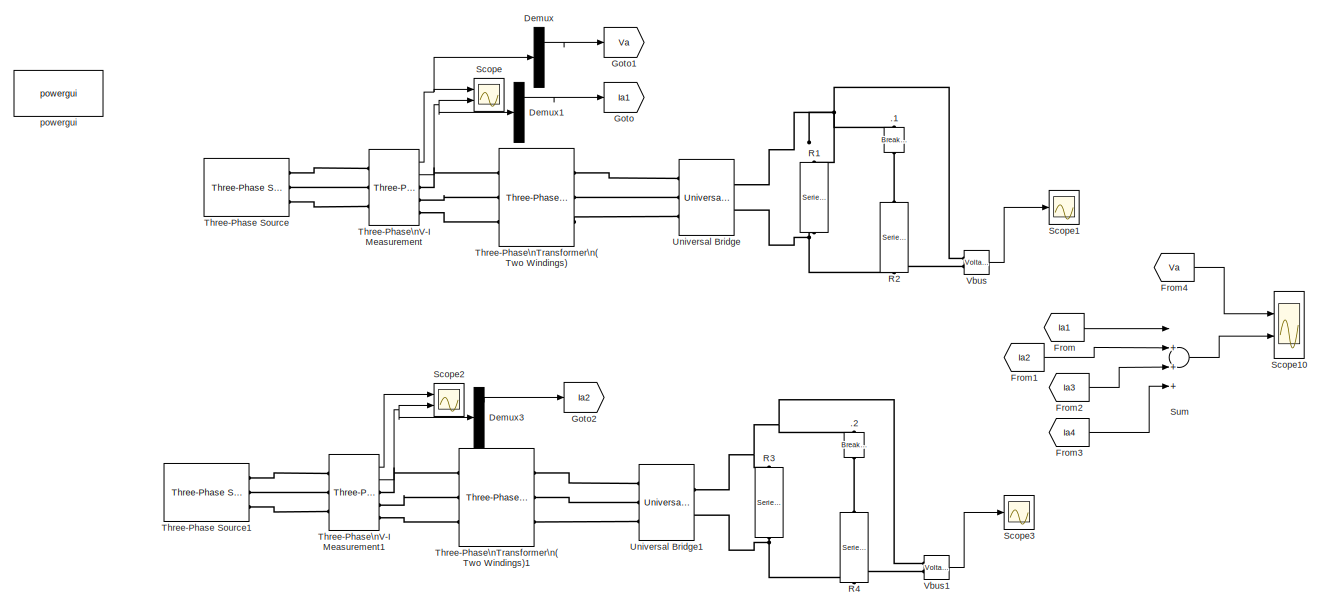
[diagram: root canvas - part 1/2, full width, top band]
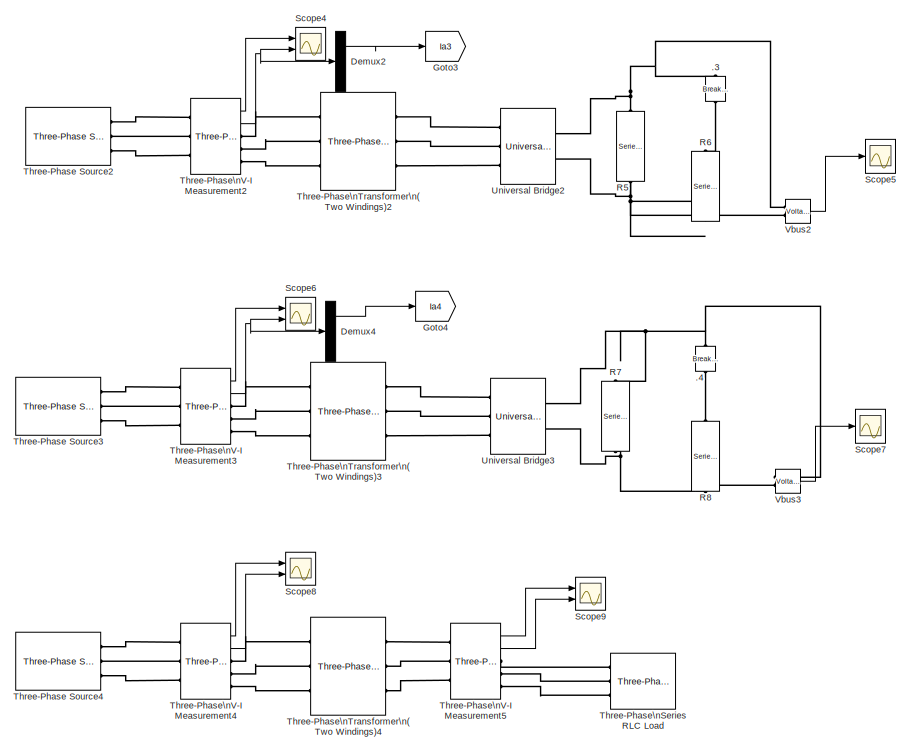
[diagram: root canvas - part 2/2, bottom center region]
MODEL DRU24_PowerFactor
KIND model
BLOCK [Reference] .1  REF=powerlib/Elements/Breaker
  AttributesFormatString = \\n
  BreakerResistance = 0.001
  External = off
  InitialState = 0
  Measurements = None
  MoreParameters = off
  NoBreakLoop = off
  Ports = [0, 0, 0, 0, 0, 1, 1]
  SID = 16
  SnubberCapacitance = inf
  SnubberResistance = 1e6
  SourceBlock = powerlib/Elements/Breaker
  SourceType = Breaker
  SwitchingTimes = [0.5]
BLOCK [Reference] .2  REF=powerlib/Elements/Breaker
  AttributesFormatString = \\n
  BreakerResistance = 0.001
  External = off
  InitialState = 0
  Measurements = None
  MoreParameters = off
  NoBreakLoop = off
  Ports = [0, 0, 0, 0, 0, 1, 1]
  SID = 26
  SnubberCapacitance = inf
  SnubberResistance = 1e6
  SourceBlock = powerlib/Elements/Breaker
  SourceType = Breaker
  SwitchingTimes = [0.5]
BLOCK [Reference] .3  REF=powerlib/Elements/Breaker
  AttributesFormatString = \\n
  BreakerResistance = 0.001
  External = off
  InitialState = 0
  Measurements = None
  MoreParameters = off
  NoBreakLoop = off
  Ports = [0, 0, 0, 0, 0, 1, 1]
  SID = 40
  SnubberCapacitance = inf
  SnubberResistance = 1e6
  SourceBlock = powerlib/Elements/Breaker
  SourceType = Breaker
  SwitchingTimes = [0.5]
BLOCK [Reference] .4  REF=powerlib/Elements/Breaker
  AttributesFormatString = \\n
  BreakerResistance = 0.001
  External = off
  InitialState = 0
  Measurements = None
  MoreParameters = off
  NoBreakLoop = off
  Ports = [0, 0, 0, 0, 0, 1, 1]
  SID = 52
  SnubberCapacitance = inf
  SnubberResistance = 1e6
  SourceBlock = powerlib/Elements/Breaker
  SourceType = Breaker
  SwitchingTimes = [0.5]
BLOCK [Demux] Demux
  DisplayOption = bar
  Outputs = 3
  Ports = [1, 3]
  SID = 23
BLOCK [Demux] Demux1
  DisplayOption = bar
  Outputs = 3
  Ports = [1, 3]
  SID = 24
BLOCK [Demux] Demux2
  DisplayOption = bar
  Outputs = 3
  Ports = [1, 3]
  SID = 41
BLOCK [Demux] Demux3
  DisplayOption = bar
  Outputs = 3
  Ports = [1, 3]
  SID = 28
BLOCK [Demux] Demux4
  DisplayOption = bar
  Outputs = 3
  Ports = [1, 3]
  SID = 53
BLOCK [From] From
  GotoTag = Ia1
  SID = 83
BLOCK [From] From1
  GotoTag = Ia2
  SID = 84
BLOCK [From] From2
  GotoTag = Ia3
  SID = 85
BLOCK [From] From3
  GotoTag = Ia4
  SID = 86
BLOCK [From] From4
  GotoTag = Va
  SID = 88
BLOCK [Goto] Goto
  GotoTag = Ia1
  SID = 20
BLOCK [Goto] Goto1
  GotoTag = Va
  SID = 25
BLOCK [Goto] Goto2
  GotoTag = Ia2
  SID = 29
BLOCK [Goto] Goto3
  GotoTag = Ia3
  SID = 42
BLOCK [Goto] Goto4
  GotoTag = Ia4
  SID = 54
BLOCK [Reference] R1  REF=powerlib/Elements/Series RLC Branch
  BranchType = C
  Capacitance = 2000e-6
  Inductance = 1e-3
  InitialCurrent = 0
  InitialVoltage = 0
  LConnTagsString = __new0
  Measurements = None
  Ports = [0, 0, 0, 0, 0, 1, 1]
  RConnTagsString = __new0
  Resistance = 1e4
  SID = 13
  SetiL0 = off
  Setx0 = off
  SourceBlock = powerlib/Elements/Series RLC Branch
  SourceType = Series RLC Branch
BLOCK [Reference] R2  REF=powerlib/Elements/Series RLC Branch
  BranchType = R
  Capacitance = 1e-6
  Inductance = 1e-3
  InitialCurrent = 0
  InitialVoltage = 0
  LConnTagsString = __new0
  Measurements = None
  Ports = [0, 0, 0, 0, 0, 1, 1]
  RConnTagsString = __new0
  Resistance = 87.55
  SID = 14
  SetiL0 = off
  Setx0 = off
  SourceBlock = powerlib/Elements/Series RLC Branch
  SourceType = Series RLC Branch
BLOCK [Reference] R3  REF=powerlib/Elements/Series RLC Branch
  BranchType = C
  Capacitance = 2000e-6
  Inductance = 1e-3
  InitialCurrent = 0
  InitialVoltage = 0
  LConnTagsString = __new0
  Measurements = None
  Ports = [0, 0, 0, 0, 0, 1, 1]
  RConnTagsString = __new0
  Resistance = 1e4
  SID = 31
  SetiL0 = off
  Setx0 = off
  SourceBlock = powerlib/Elements/Series RLC Branch
  SourceType = Series RLC Branch
BLOCK [Reference] R4  REF=powerlib/Elements/Series RLC Branch
  BranchType = R
  Capacitance = 1e-6
  Inductance = 1e-3
  InitialCurrent = 0
  InitialVoltage = 0
  LConnTagsString = __new0
  Measurements = None
  Ports = [0, 0, 0, 0, 0, 1, 1]
  RConnTagsString = __new0
  Resistance = 87.55
  SID = 32
  SetiL0 = off
  Setx0 = off
  SourceBlock = powerlib/Elements/Series RLC Branch
  SourceType = Series RLC Branch
BLOCK [Reference] R5  REF=powerlib/Elements/Series RLC Branch
  BranchType = C
  Capacitance = 2000e-6
  Inductance = 1e-3
  InitialCurrent = 0
  InitialVoltage = 0
  LConnTagsString = __new0
  Measurements = None
  Ports = [0, 0, 0, 0, 0, 1, 1]
  RConnTagsString = __new0
  Resistance = 1e4
  SID = 43
  SetiL0 = off
  Setx0 = off
  SourceBlock = powerlib/Elements/Series RLC Branch
  SourceType = Series RLC Branch
BLOCK [Reference] R6  REF=powerlib/Elements/Series RLC Branch
  BranchType = R
  Capacitance = 1e-6
  Inductance = 1e-3
  InitialCurrent = 0
  InitialVoltage = 0
  LConnTagsString = __new0
  Measurements = None
  Ports = [0, 0, 0, 0, 0, 1, 1]
  RConnTagsString = __new0
  Resistance = 87.55
  SID = 44
  SetiL0 = off
  Setx0 = off
  SourceBlock = powerlib/Elements/Series RLC Branch
  SourceType = Series RLC Branch
BLOCK [Reference] R7  REF=powerlib/Elements/Series RLC Branch
  BranchType = C
  Capacitance = 2000e-6
  Inductance = 1e-3
  InitialCurrent = 0
  InitialVoltage = 0
  LConnTagsString = __new0
  Measurements = None
  Ports = [0, 0, 0, 0, 0, 1, 1]
  RConnTagsString = __new0
  Resistance = 1e4
  SID = 55
  SetiL0 = off
  Setx0 = off
  SourceBlock = powerlib/Elements/Series RLC Branch
  SourceType = Series RLC Branch
BLOCK [Reference] R8  REF=powerlib/Elements/Series RLC Branch
  BranchType = R
  Capacitance = 1e-6
  Inductance = 1e-3
  InitialCurrent = 0
  InitialVoltage = 0
  LConnTagsString = __new0
  Measurements = None
  Ports = [0, 0, 0, 0, 0, 1, 1]
  RConnTagsString = __new0
  Resistance = 87.55
  SID = 56
  SetiL0 = off
  Setx0 = off
  SourceBlock = powerlib/Elements/Series RLC Branch
  SourceType = Series RLC Branch
BLOCK [Scope] Scope
  DataFormat = StructureWithTime
  Floating = off
  LimitDataPoints = off
  NumInputPorts = 2
  Ports = [2]
  SID = 17
  SampleTime = 0
  ShowLegends = off
  YMax = 5~5
  YMin = -5~-5
  ZoomMode = xonly
BLOCK [Scope] Scope1
  DataFormat = StructureWithTime
  Floating = off
  LimitDataPoints = off
  NumInputPorts = 1
  Ports = [1]
  SID = 18
  SampleTime = 0
  SaveName = ScopeData1
  ShowLegends = off
  ZoomMode = yonly
BLOCK [Scope] Scope10
  DataFormat = StructureWithTime
  Floating = off
  LimitDataPoints = off
  NumInputPorts = 2
  Ports = [2]
  SID = 87
  SampleTime = 0
  SaveName = ScopeData10
  SaveToWorkspace = on
  ShowLegends = off
  YMax = 40000~260
  YMin = -40000~-260
  ZoomMode = xonly
BLOCK [Scope] Scope2
  DataFormat = StructureWithTime
  Floating = off
  LimitDataPoints = off
  NumInputPorts = 2
  Ports = [2]
  SID = 33
  SampleTime = 0
  SaveName = ScopeData2
  ShowLegends = off
  YMax = 5~5
  YMin = -5~-5
  ZoomMode = xonly
BLOCK [Scope] Scope3
  DataFormat = StructureWithTime
  Floating = off
  LimitDataPoints = off
  NumInputPorts = 1
  Ports = [1]
  SID = 34
  SampleTime = 0
  SaveName = ScopeData3
  ShowLegends = off
BLOCK [Scope] Scope4
  DataFormat = StructureWithTime
  Floating = off
  LimitDataPoints = off
  NumInputPorts = 2
  Ports = [2]
  SID = 45
  SampleTime = 0
  SaveName = ScopeData4
  ShowLegends = off
  YMax = 5~5
  YMin = -5~-5
  ZoomMode = xonly
BLOCK [Scope] Scope5
  DataFormat = StructureWithTime
  Floating = off
  LimitDataPoints = off
  NumInputPorts = 1
  Ports = [1]
  SID = 46
  SampleTime = 0
  SaveName = ScopeData5
  ShowLegends = off
BLOCK [Scope] Scope6
  DataFormat = StructureWithTime
  Floating = off
  LimitDataPoints = off
  NumInputPorts = 2
  Ports = [2]
  SID = 57
  SampleTime = 0
  SaveName = ScopeData6
  ShowLegends = off
  YMax = 5~5
  YMin = -5~-5
  ZoomMode = xonly
BLOCK [Scope] Scope7
  DataFormat = StructureWithTime
  Floating = off
  LimitDataPoints = off
  NumInputPorts = 1
  Ports = [1]
  SID = 58
  SampleTime = 0
  SaveName = ScopeData7
  ShowLegends = off
BLOCK [Scope] Scope8
  DataFormat = StructureWithTime
  Floating = off
  LimitDataPoints = off
  NumInputPorts = 2
  Ports = [2]
  SID = 74
  SampleTime = 0
  SaveName = ScopeData8
  ShowLegends = off
  YMax = 5~5
  YMin = -5~-5
  ZoomMode = xonly
BLOCK [Scope] Scope9
  DataFormat = StructureWithTime
  Floating = off
  LimitDataPoints = off
  NumInputPorts = 2
  Ports = [2]
  SID = 81
  SampleTime = 0
  SaveName = ScopeData9
  ShowLegends = off
  YMax = 5~5
  YMin = -5~-5
  ZoomMode = xonly
BLOCK [Sum] Sum
  InputSameDT = off
  Inputs = |++++
  OutDataTypeStr = Inherit: Inherit via internal rule
  Ports = [4, 1]
  SID = 82
  SaturateOnIntegerOverflow = off
BLOCK [Reference] Three-Phase Source  REF=powerlib/Electrical\nSources/Three-Phase Source
  BaseVoltage = 25e3
  BusType = swing
  Frequency = 50
  Inductance = 1e-6
  InternalConnection = Yg
  PhaseAngle = 0
  Ports = [0, 0, 0, 0, 0, 0, 3]
  Pref = 0
  Qmax = inf
  Qmin = -inf
  Qref = 0
  Resistance = 1e-5
  SID = 2
  ShortCircuitLevel = 1e8
  SourceBlock = powerlib/Electrical\nSources/Three-Phase Source
  SourceType = Three-Phase Source
  SpecifyImpedance = off
  Voltage = 25e3
  XRratio = 0.1
BLOCK [Reference] Three-Phase Source1  REF=powerlib/Electrical\nSources/Three-Phase Source
  BaseVoltage = 25e3
  BusType = swing
  Frequency = 50
  Inductance = 1e-6
  InternalConnection = Yg
  PhaseAngle = 15
  Ports = [0, 0, 0, 0, 0, 0, 3]
  Pref = 0
  Qmax = inf
  Qmin = -inf
  Qref = 0
  Resistance = 1e-5
  SID = 37
  ShortCircuitLevel = 1e8
  SourceBlock = powerlib/Electrical\nSources/Three-Phase Source
  SourceType = Three-Phase Source
  SpecifyImpedance = off
  Voltage = 25e3
  XRratio = 0.1
BLOCK [Reference] Three-Phase Source2  REF=powerlib/Electrical\nSources/Three-Phase Source
  BaseVoltage = 25e3
  BusType = swing
  Frequency = 50
  Inductance = 1e-6
  InternalConnection = Yg
  PhaseAngle = 30
  Ports = [0, 0, 0, 0, 0, 0, 3]
  Pref = 0
  Qmax = inf
  Qmin = -inf
  Qref = 0
  Resistance = 1e-5
  SID = 49
  ShortCircuitLevel = 1e8
  SourceBlock = powerlib/Electrical\nSources/Three-Phase Source
  SourceType = Three-Phase Source
  SpecifyImpedance = off
  Voltage = 25e3
  XRratio = 0.1
BLOCK [Reference] Three-Phase Source3  REF=powerlib/Electrical\nSources/Three-Phase Source
  BaseVoltage = 25e3
  BusType = swing
  Frequency = 50
  Inductance = 1e-6
  InternalConnection = Yg
  PhaseAngle = 45
  Ports = [0, 0, 0, 0, 0, 0, 3]
  Pref = 0
  Qmax = inf
  Qmin = -inf
  Qref = 0
  Resistance = 1e-5
  SID = 61
  ShortCircuitLevel = 1e8
  SourceBlock = powerlib/Electrical\nSources/Three-Phase Source
  SourceType = Three-Phase Source
  SpecifyImpedance = off
  Voltage = 25e3
  XRratio = 0.1
BLOCK [Reference] Three-Phase Source4  REF=powerlib/Electrical\nSources/Three-Phase Source
  BaseVoltage = 25e3
  BusType = swing
  Frequency = 50
  Inductance = 1e-6
  InternalConnection = Yg
  PhaseAngle = 0
  Ports = [0, 0, 0, 0, 0, 0, 3]
  Pref = 0
  Qmax = inf
  Qmin = -inf
  Qref = 0
  Resistance = 1e-5
  SID = 77
  ShortCircuitLevel = 1e8
  SourceBlock = powerlib/Electrical\nSources/Three-Phase Source
  SourceType = Three-Phase Source
  SpecifyImpedance = off
  Voltage = 25e3
  XRratio = 0.1
BLOCK [Reference] Three-Phase\nSeries RLC Load  REF=powerlib/Elements/Three-Phase\nSeries RLC Load
  ActivePower = 1e6
  AttributesFormatString = \\n
  CapacitivePower = 0
  Configuration = Y (grounded)
  InductivePower = 0
  LConnTagsString = A|B|C
  LoadType = constant Z
  Measurements = None
  NominalFrequency = 50
  NominalVoltage = 1800
  Ports = [0, 0, 0, 0, 0, 3]
  SID = 79
  SourceBlock = powerlib/Elements/Three-Phase\nSeries RLC Load
  SourceType = Three-Phase Series RLC Load
BLOCK [Reference] Three-Phase\nTransformer\n(Two Windings)  REF=powerlib/Elements/Three-Phase\nTransformer\n(Two Windings)
  BreakLoop = off
  DataFile = 'hysteresis'
  DataType = off
  Hysteresis = off
  InitialFluxes = [ 0.8 , -0.8 , 0.7 ]
  Lm = 500
  Measurements = None
  MoreParameters = off
  NominalPower = [ 1.25e6 , 50 ]
  Ports = [0, 0, 0, 0, 0, 3, 3]
  Rm = 500
  SID = 10
  Saturation = [ 0,0 ; 0.0024,1.2 ; 1.0,1.52 ]
  SetInitialFlux = off
  SetSaturation = off
  SourceBlock = powerlib/Elements/Three-Phase\nTransformer\n(Two Windings)
  SourceType = Three-Phase Transformer (Two Windings)
  TransfoNumber = 1
  UNITS = pu
  Winding1 = [ 25e3 , 0.002 , 0.01 ]
  Winding1Connection = Delta (D1)
  Winding2 = [ 1.8e3 , 0.002 , 0.064 ]
  Winding2Connection = Delta (D1)
BLOCK [Reference] Three-Phase\nTransformer\n(Two Windings)1  REF=powerlib/Elements/Three-Phase\nTransformer\n(Two Windings)
  BreakLoop = off
  DataFile = 'hysteresis'
  DataType = off
  Hysteresis = off
  InitialFluxes = [ 0.8 , -0.8 , 0.7 ]
  Lm = 500
  Measurements = None
  MoreParameters = off
  NominalPower = [ 1.25e6 , 50 ]
  Ports = [0, 0, 0, 0, 0, 3, 3]
  Rm = 500
  SID = 35
  Saturation = [ 0,0 ; 0.0024,1.2 ; 1.0,1.52 ]
  SetInitialFlux = off
  SetSaturation = off
  SourceBlock = powerlib/Elements/Three-Phase\nTransformer\n(Two Windings)
  SourceType = Three-Phase Transformer (Two Windings)
  TransfoNumber = 1
  UNITS = pu
  Winding1 = [ 25e3 , 0.002 , 0.01 ]
  Winding1Connection = Delta (D1)
  Winding2 = [ 1.8e3 , 0.002 , 0.064 ]
  Winding2Connection = Delta (D1)
BLOCK [Reference] Three-Phase\nTransformer\n(Two Windings)2  REF=powerlib/Elements/Three-Phase\nTransformer\n(Two Windings)
  BreakLoop = off
  DataFile = 'hysteresis'
  DataType = off
  Hysteresis = off
  InitialFluxes = [ 0.8 , -0.8 , 0.7 ]
  Lm = 500
  Measurements = None
  MoreParameters = off
  NominalPower = [ 1.25e6 , 50 ]
  Ports = [0, 0, 0, 0, 0, 3, 3]
  Rm = 500
  SID = 47
  Saturation = [ 0,0 ; 0.0024,1.2 ; 1.0,1.52 ]
  SetInitialFlux = off
  SetSaturation = off
  SourceBlock = powerlib/Elements/Three-Phase\nTransformer\n(Two Windings)
  SourceType = Three-Phase Transformer (Two Windings)
  TransfoNumber = 1
  UNITS = pu
  Winding1 = [ 25e3 , 0.002 , 0.01 ]
  Winding1Connection = Delta (D1)
  Winding2 = [ 1.8e3 , 0.002 , 0.064 ]
  Winding2Connection = Delta (D1)
BLOCK [Reference] Three-Phase\nTransformer\n(Two Windings)3  REF=powerlib/Elements/Three-Phase\nTransformer\n(Two Windings)
  BreakLoop = off
  DataFile = 'hysteresis'
  DataType = off
  Hysteresis = off
  InitialFluxes = [ 0.8 , -0.8 , 0.7 ]
  Lm = 500
  Measurements = None
  MoreParameters = off
  NominalPower = [ 1.25e6 , 50 ]
  Ports = [0, 0, 0, 0, 0, 3, 3]
  Rm = 500
  SID = 59
  Saturation = [ 0,0 ; 0.0024,1.2 ; 1.0,1.52 ]
  SetInitialFlux = off
  SetSaturation = off
  SourceBlock = powerlib/Elements/Three-Phase\nTransformer\n(Two Windings)
  SourceType = Three-Phase Transformer (Two Windings)
  TransfoNumber = 1
  UNITS = pu
  Winding1 = [ 25e3 , 0.002 , 0.01 ]
  Winding1Connection = Delta (D1)
  Winding2 = [ 1.8e3 , 0.002 , 0.15 ]
  Winding2Connection = Delta (D1)
BLOCK [Reference] Three-Phase\nTransformer\n(Two Windings)4  REF=powerlib/Elements/Three-Phase\nTransformer\n(Two Windings)
  BreakLoop = off
  DataFile = 'hysteresis'
  DataType = off
  Hysteresis = off
  InitialFluxes = [ 0.8 , -0.8 , 0.7 ]
  Lm = 500
  Measurements = None
  MoreParameters = off
  NominalPower = [ 1.25e6 , 50 ]
  Ports = [0, 0, 0, 0, 0, 3, 3]
  Rm = 500
  SID = 75
  Saturation = [ 0,0 ; 0.0024,1.2 ; 1.0,1.52 ]
  SetInitialFlux = off
  SetSaturation = off
  SourceBlock = powerlib/Elements/Three-Phase\nTransformer\n(Two Windings)
  SourceType = Three-Phase Transformer (Two Windings)
  TransfoNumber = 1
  UNITS = pu
  Winding1 = [ 25e3 , 0.002 , 0.01 ]
  Winding1Connection = Delta (D1)
  Winding2 = [ 1.8e3 , 0.002 , 0.064 ]
  Winding2Connection = Y
BLOCK [Reference] Three-Phase\nV-I Measurement  REF=powerlib/Measurements/Three-Phase\nV-I Measurement
  CurrentMeasurement = yes
  Ipu = off
  LabelI = Iabc
  LabelV = Vabc
  OutputType = Complex
  PSBequivalent = 0
  Pbase = 100e6
  PhasorSimulation = off
  Ports = [0, 2, 0, 0, 0, 3, 3]
  SID = 4
  SetLabelI = off
  SetLabelV = off
  SourceBlock = powerlib/Measurements/Three-Phase\nV-I Measurement
  SourceType = Three-Phase VI Measurement
  Vbase = 500e3
  VoltageMeasurement = phase-to-phase
  Vpu = off
  VpuLL = off
BLOCK [Reference] Three-Phase\nV-I Measurement1  REF=powerlib/Measurements/Three-Phase\nV-I Measurement
  CurrentMeasurement = yes
  Ipu = off
  LabelI = Iabc
  LabelV = Vabc
  OutputType = Complex
  PSBequivalent = 0
  Pbase = 100e6
  PhasorSimulation = off
  Ports = [0, 2, 0, 0, 0, 3, 3]
  SID = 36
  SetLabelI = off
  SetLabelV = off
  SourceBlock = powerlib/Measurements/Three-Phase\nV-I Measurement
  SourceType = Three-Phase VI Measurement
  Vbase = 500e3
  VoltageMeasurement = phase-to-phase
  Vpu = off
  VpuLL = off
BLOCK [Reference] Three-Phase\nV-I Measurement2  REF=powerlib/Measurements/Three-Phase\nV-I Measurement
  CurrentMeasurement = yes
  Ipu = off
  LabelI = Iabc
  LabelV = Vabc
  OutputType = Complex
  PSBequivalent = 0
  Pbase = 100e6
  PhasorSimulation = off
  Ports = [0, 2, 0, 0, 0, 3, 3]
  SID = 48
  SetLabelI = off
  SetLabelV = off
  SourceBlock = powerlib/Measurements/Three-Phase\nV-I Measurement
  SourceType = Three-Phase VI Measurement
  Vbase = 500e3
  VoltageMeasurement = phase-to-phase
  Vpu = off
  VpuLL = off
BLOCK [Reference] Three-Phase\nV-I Measurement3  REF=powerlib/Measurements/Three-Phase\nV-I Measurement
  CurrentMeasurement = yes
  Ipu = off
  LabelI = Iabc
  LabelV = Vabc
  OutputType = Complex
  PSBequivalent = 0
  Pbase = 100e6
  PhasorSimulation = off
  Ports = [0, 2, 0, 0, 0, 3, 3]
  SID = 60
  SetLabelI = off
  SetLabelV = off
  SourceBlock = powerlib/Measurements/Three-Phase\nV-I Measurement
  SourceType = Three-Phase VI Measurement
  Vbase = 500e3
  VoltageMeasurement = phase-to-phase
  Vpu = off
  VpuLL = off
BLOCK [Reference] Three-Phase\nV-I Measurement4  REF=powerlib/Measurements/Three-Phase\nV-I Measurement
  CurrentMeasurement = yes
  Ipu = off
  LabelI = Iabc
  LabelV = Vabc
  OutputType = Complex
  PSBequivalent = 0
  Pbase = 100e6
  PhasorSimulation = off
  Ports = [0, 2, 0, 0, 0, 3, 3]
  SID = 76
  SetLabelI = off
  SetLabelV = off
  SourceBlock = powerlib/Measurements/Three-Phase\nV-I Measurement
  SourceType = Three-Phase VI Measurement
  Vbase = 500e3
  VoltageMeasurement = phase-to-ground
  Vpu = off
  VpuLL = off
BLOCK [Reference] Three-Phase\nV-I Measurement5  REF=powerlib/Measurements/Three-Phase\nV-I Measurement
  CurrentMeasurement = yes
  Ipu = off
  LabelI = Iabc
  LabelV = Vabc
  OutputType = Complex
  PSBequivalent = 0
  Pbase = 100e6
  PhasorSimulation = off
  Ports = [0, 2, 0, 0, 0, 3, 3]
  SID = 80
  SetLabelI = off
  SetLabelV = off
  SourceBlock = powerlib/Measurements/Three-Phase\nV-I Measurement
  SourceType = Three-Phase VI Measurement
  Vbase = 500e3
  VoltageMeasurement = phase-to-ground
  Vpu = off
  VpuLL = off
BLOCK [Reference] Universal Bridge  REF=powerlib/Power\nElectronics/Universal Bridge
  Arms = 3
  Device = Diodes
  ForwardVoltage = 0.2
  ForwardVoltages = [  0  0  ]
  GTOparameters = [ 10e-6 , 20e-6 ]
  IGBTparameters = [ 1e-6 , 2e-6 ]
  Lon = 0
  Measurements = None
  Measurements_2 = None
  Ports = [0, 0, 0, 0, 0, 3, 2]
  Ron = 1e-3
  SID = 12
  SnubberCapacitance = inf
  SnubberResistance = 1e5
  SourceBlock = powerlib/Power\nElectronics/Universal Bridge
  SourceType = Universal Bridge
  converterType = Rectifier
BLOCK [Reference] Universal Bridge1  REF=powerlib/Power\nElectronics/Universal Bridge
  Arms = 3
  Device = Diodes
  ForwardVoltage = 0.2
  ForwardVoltages = [  0  0  ]
  GTOparameters = [ 10e-6 , 20e-6 ]
  IGBTparameters = [ 1e-6 , 2e-6 ]
  Lon = 0
  Measurements = None
  Measurements_2 = None
  Ports = [0, 0, 0, 0, 0, 3, 2]
  Ron = 1e-3
  SID = 38
  SnubberCapacitance = inf
  SnubberResistance = 1e5
  SourceBlock = powerlib/Power\nElectronics/Universal Bridge
  SourceType = Universal Bridge
  converterType = Rectifier
BLOCK [Reference] Universal Bridge2  REF=powerlib/Power\nElectronics/Universal Bridge
  Arms = 3
  Device = Diodes
  ForwardVoltage = 0.2
  ForwardVoltages = [  0  0  ]
  GTOparameters = [ 10e-6 , 20e-6 ]
  IGBTparameters = [ 1e-6 , 2e-6 ]
  Lon = 0
  Measurements = None
  Measurements_2 = None
  Ports = [0, 0, 0, 0, 0, 3, 2]
  Ron = 1e-3
  SID = 50
  SnubberCapacitance = inf
  SnubberResistance = 1e5
  SourceBlock = powerlib/Power\nElectronics/Universal Bridge
  SourceType = Universal Bridge
  converterType = Rectifier
BLOCK [Reference] Universal Bridge3  REF=powerlib/Power\nElectronics/Universal Bridge
  Arms = 3
  Device = Diodes
  ForwardVoltage = 0.2
  ForwardVoltages = [  0  0  ]
  GTOparameters = [ 10e-6 , 20e-6 ]
  IGBTparameters = [ 1e-6 , 2e-6 ]
  Lon = 0
  Measurements = None
  Measurements_2 = None
  Ports = [0, 0, 0, 0, 0, 3, 2]
  Ron = 1e-3
  SID = 62
  SnubberCapacitance = inf
  SnubberResistance = 1e5
  SourceBlock = powerlib/Power\nElectronics/Universal Bridge
  SourceType = Universal Bridge
  converterType = Rectifier
BLOCK [Reference] Vbus  REF=powerlib/Measurements/Voltage Measurement
  OutputType = Complex
  PSBequivalent = 0
  PhasorSimulation = off
  Ports = [0, 1, 0, 0, 0, 2]
  SID = 19
  SourceBlock = powerlib/Measurements/Voltage Measurement
  SourceType = Voltage Measurement
BLOCK [Reference] Vbus1  REF=powerlib/Measurements/Voltage Measurement
  OutputType = Complex
  PSBequivalent = 0
  PhasorSimulation = off
  Ports = [0, 1, 0, 0, 0, 2]
  SID = 39
  SourceBlock = powerlib/Measurements/Voltage Measurement
  SourceType = Voltage Measurement
BLOCK [Reference] Vbus2  REF=powerlib/Measurements/Voltage Measurement
  OutputType = Complex
  PSBequivalent = 0
  PhasorSimulation = off
  Ports = [0, 1, 0, 0, 0, 2]
  SID = 51
  SourceBlock = powerlib/Measurements/Voltage Measurement
  SourceType = Voltage Measurement
BLOCK [Reference] Vbus3  REF=powerlib/Measurements/Voltage Measurement
  OutputType = Complex
  PSBequivalent = 0
  PhasorSimulation = off
  Ports = [0, 1, 0, 0, 0, 2]
  SID = 63
  SourceBlock = powerlib/Measurements/Voltage Measurement
  SourceType = Voltage Measurement
BLOCK [Reference] powergui  REF=powerlib/powergui
  DisableRonSwitches = off
  DisableSnubberDevices = off
  DisableVfSwitches = off
  DisplayEquations = off
  DisplayStyle = 2
  EnableUseOfTLC = off
  ErrMax = 1e-4
  Frange = [0:2:500]
  FreqAxis = on
  FunctionMessages = off
  HookPort = off
  Interpol = off
  Iterations = 50
  MaxFrequency = 1000
  Pbase = 100e6
  Ports = []
  Priority = 2
  ResistiveCurrentMeasurement = off
  RestoreLinks = warning
  RmsSteady = 1
  SID = 1
  SPID = off
  SampleTime = 50e-6
  ShowGrid = off
  SolverType = Tustin
  SourceBlock = powerlib/powergui
  SourceType = PSB option menu block
  StartTime = 0.98
  SwTol = 0
  Ts = 0
  UnitsV = kV
  UnitsW = MW
  UserData = DataTag0
  UserDataPersistent = on
  Xlog = on
  Ylog = off
  ZoomFFT = off
  cycles = 1
  display = off
  echomessages = off
  frequency = 60
  frequencyindice = 50
  frequencyindicesteady = 1
  fundamental = 50
  methode = off
  save = off
  structure = ScopeData10
  variable = ZData
  x0status = blocks
LINE Demux1:1 -> Goto:1
LINE Demux2:1 -> Goto3:1
LINE Demux3:1 -> Goto2:1
LINE Demux4:1 -> Goto4:1
LINE Demux:1 -> Goto1:1
LINE From1:1 -> Sum:2
LINE From2:1 -> Sum:3
LINE From3:1 -> Sum:4
LINE From4:1 -> Scope10:1
LINE From:1 -> Sum:1
LINE Sum:1 -> Scope10:2
LINE Three-Phase\nV-I Measurement1:1 -> Scope2:1
NET Three-Phase\nV-I Measurement1:2 -> Demux3:1, Scope2:2
LINE Three-Phase\nV-I Measurement2:1 -> Scope4:1
NET Three-Phase\nV-I Measurement2:2 -> Demux2:1, Scope4:2
LINE Three-Phase\nV-I Measurement3:1 -> Scope6:1
NET Three-Phase\nV-I Measurement3:2 -> Demux4:1, Scope6:2
LINE Three-Phase\nV-I Measurement4:1 -> Scope8:1
LINE Three-Phase\nV-I Measurement4:2 -> Scope8:2
LINE Three-Phase\nV-I Measurement5:1 -> Scope9:1
LINE Three-Phase\nV-I Measurement5:2 -> Scope9:2
NET Three-Phase\nV-I Measurement:1 -> Demux:1, Scope:1
NET Three-Phase\nV-I Measurement:2 -> Demux1:1, Scope:2
LINE Vbus1:1 -> Scope3:1
LINE Vbus2:1 -> Scope5:1
LINE Vbus3:1 -> Scope7:1
LINE Vbus:1 -> Scope1:1
PNET net1: .1:LConn1 -- R1:LConn1 -- Universal Bridge:RConn1 -- Vbus:LConn1
PLINE .1:RConn1 -- R2:LConn1
PNET net2: .2:LConn1 -- R3:LConn1 -- Universal Bridge1:RConn1 -- Vbus1:LConn1
PLINE .2:RConn1 -- R4:LConn1
PNET net3: .3:LConn1 -- R5:LConn1 -- Universal Bridge2:RConn1 -- Vbus2:LConn1
PLINE .3:RConn1 -- R6:LConn1
PNET net4: .4:LConn1 -- R7:LConn1 -- Universal Bridge3:RConn1 -- Vbus3:LConn1
PLINE .4:RConn1 -- R8:LConn1
PNET net5: R1:RConn1 -- R2:RConn1 -- Universal Bridge:RConn2 -- Vbus:LConn2
PNET net6: R3:RConn1 -- R4:RConn1 -- Universal Bridge1:RConn2 -- Vbus1:LConn2
PNET net7: R5:RConn1 -- R6:RConn1 -- Universal Bridge2:RConn2 -- Vbus2:LConn2
PNET net8: R7:RConn1 -- R8:RConn1 -- Universal Bridge3:RConn2 -- Vbus3:LConn2
PLINE Three-Phase Source1:RConn1 -- Three-Phase\nV-I Measurement1:LConn1
PLINE Three-Phase Source1:RConn2 -- Three-Phase\nV-I Measurement1:LConn2
PLINE Three-Phase Source1:RConn3 -- Three-Phase\nV-I Measurement1:LConn3
PLINE Three-Phase Source2:RConn1 -- Three-Phase\nV-I Measurement2:LConn1
PLINE Three-Phase Source2:RConn2 -- Three-Phase\nV-I Measurement2:LConn2
PLINE Three-Phase Source2:RConn3 -- Three-Phase\nV-I Measurement2:LConn3
PLINE Three-Phase Source3:RConn1 -- Three-Phase\nV-I Measurement3:LConn1
PLINE Three-Phase Source3:RConn2 -- Three-Phase\nV-I Measurement3:LConn2
PLINE Three-Phase Source3:RConn3 -- Three-Phase\nV-I Measurement3:LConn3
PLINE Three-Phase Source4:RConn1 -- Three-Phase\nV-I Measurement4:LConn1
PLINE Three-Phase Source4:RConn2 -- Three-Phase\nV-I Measurement4:LConn2
PLINE Three-Phase Source4:RConn3 -- Three-Phase\nV-I Measurement4:LConn3
PLINE Three-Phase Source:RConn1 -- Three-Phase\nV-I Measurement:LConn1
PLINE Three-Phase Source:RConn2 -- Three-Phase\nV-I Measurement:LConn2
PLINE Three-Phase Source:RConn3 -- Three-Phase\nV-I Measurement:LConn3
PLINE Three-Phase\nSeries RLC Load:LConn1 -- Three-Phase\nV-I Measurement5:RConn1
PLINE Three-Phase\nSeries RLC Load:LConn2 -- Three-Phase\nV-I Measurement5:RConn2
PLINE Three-Phase\nSeries RLC Load:LConn3 -- Three-Phase\nV-I Measurement5:RConn3
PLINE Three-Phase\nTransformer\n(Two Windings)1:LConn1 -- Three-Phase\nV-I Measurement1:RConn1
PLINE Three-Phase\nTransformer\n(Two Windings)1:LConn2 -- Three-Phase\nV-I Measurement1:RConn2
PLINE Three-Phase\nTransformer\n(Two Windings)1:LConn3 -- Three-Phase\nV-I Measurement1:RConn3
PLINE Three-Phase\nTransformer\n(Two Windings)1:RConn1 -- Universal Bridge1:LConn1
PLINE Three-Phase\nTransformer\n(Two Windings)1:RConn2 -- Universal Bridge1:LConn2
PLINE Three-Phase\nTransformer\n(Two Windings)1:RConn3 -- Universal Bridge1:LConn3
PLINE Three-Phase\nTransformer\n(Two Windings)2:LConn1 -- Three-Phase\nV-I Measurement2:RConn1
PLINE Three-Phase\nTransformer\n(Two Windings)2:LConn2 -- Three-Phase\nV-I Measurement2:RConn2
PLINE Three-Phase\nTransformer\n(Two Windings)2:LConn3 -- Three-Phase\nV-I Measurement2:RConn3
PLINE Three-Phase\nTransformer\n(Two Windings)2:RConn1 -- Universal Bridge2:LConn1
PLINE Three-Phase\nTransformer\n(Two Windings)2:RConn2 -- Universal Bridge2:LConn2
PLINE Three-Phase\nTransformer\n(Two Windings)2:RConn3 -- Universal Bridge2:LConn3
PLINE Three-Phase\nTransformer\n(Two Windings)3:LConn1 -- Three-Phase\nV-I Measurement3:RConn1
PLINE Three-Phase\nTransformer\n(Two Windings)3:LConn2 -- Three-Phase\nV-I Measurement3:RConn2
PLINE Three-Phase\nTransformer\n(Two Windings)3:LConn3 -- Three-Phase\nV-I Measurement3:RConn3
PLINE Three-Phase\nTransformer\n(Two Windings)3:RConn1 -- Universal Bridge3:LConn1
PLINE Three-Phase\nTransformer\n(Two Windings)3:RConn2 -- Universal Bridge3:LConn2
PLINE Three-Phase\nTransformer\n(Two Windings)3:RConn3 -- Universal Bridge3:LConn3
PLINE Three-Phase\nTransformer\n(Two Windings)4:LConn1 -- Three-Phase\nV-I Measurement4:RConn1
PLINE Three-Phase\nTransformer\n(Two Windings)4:LConn2 -- Three-Phase\nV-I Measurement4:RConn2
PLINE Three-Phase\nTransformer\n(Two Windings)4:LConn3 -- Three-Phase\nV-I Measurement4:RConn3
PLINE Three-Phase\nTransformer\n(Two Windings)4:RConn1 -- Three-Phase\nV-I Measurement5:LConn1
PLINE Three-Phase\nTransformer\n(Two Windings)4:RConn2 -- Three-Phase\nV-I Measurement5:LConn2
PLINE Three-Phase\nTransformer\n(Two Windings)4:RConn3 -- Three-Phase\nV-I Measurement5:LConn3
PLINE Three-Phase\nTransformer\n(Two Windings):LConn1 -- Three-Phase\nV-I Measurement:RConn1
PLINE Three-Phase\nTransformer\n(Two Windings):LConn2 -- Three-Phase\nV-I Measurement:RConn2
PLINE Three-Phase\nTransformer\n(Two Windings):LConn3 -- Three-Phase\nV-I Measurement:RConn3
PLINE Three-Phase\nTransformer\n(Two Windings):RConn1 -- Universal Bridge:LConn1
PLINE Three-Phase\nTransformer\n(Two Windings):RConn2 -- Universal Bridge:LConn2
PLINE Three-Phase\nTransformer\n(Two Windings):RConn3 -- Universal Bridge:LConn3
note: NET lines group one-source signal fan-out (src -> all destinations, sorted); 1:1 wires keep LINE; PNET lines group multi-terminal physical nets as a canonical sorted terminal list (undirected conserving connections); 2-terminal nets keep the pairwise PLINE form
